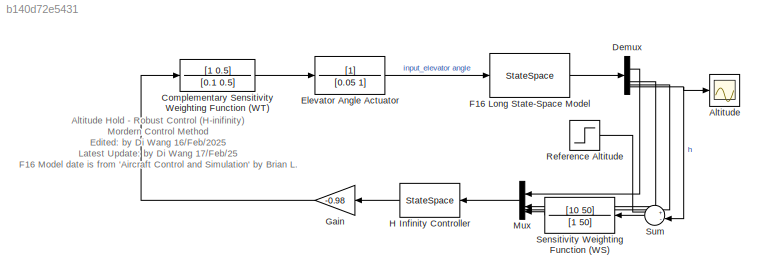
MODEL slx_b140d72e5431
KIND model
CONFIG AbsTol = auto
CONFIG EnableMultiTasking = off
CONFIG FixedStep = auto
CONFIG MaxStep = auto
CONFIG MinStep = auto
CONFIG RelTol = 1e-3
CONFIG SampleTimeConstraint = Unconstrained
CONFIG SolverName = VariableStepAuto
CONFIG StartTime = 0.0
CONFIG StopTime = 500
BLOCK [Scope] Altitude
  Floating = off
  NumInputPorts = 1
  ScopeSpecificationString = Simulink.scopes.TimeScopeBlockCfg('CurrentConfiguration', extmgr.ConfigurationSet(extmgr.Configuration('Core','General UI',true),extmgr.Configuration('Core','Source UI',true),extmgr.Configuration('Sources','WiredSimulink',true),extmgr.Configuration('Visuals','Time Domain',true,'SerializedDisplays',{struct('MinYLimReal','-173.58061','MaxYLimReal','1387.3348','YLabelReal','','MinYLimMag',' 0.00000',...<+1453ch>
BLOCK [TransferFcn] Complementary Sensitivity Weighting Function (WT)
  Denominator = [0.1 0.5]
  Numerator = [1 0.5]
BLOCK [Demux] Demux
BLOCK [TransferFcn] Elevator Angle Actuator
  Denominator = [0.05 1]
BLOCK [StateSpace] F16 Long State-Space Model
  A = sysLong.A
  B = sysLong.B
  C = sysLong.C
  D = sysLong.D
  InitialCondition = 0
BLOCK [Gain] Gain
  Gain = -0.98
  NameLocation = top
BLOCK [StateSpace] H Infinity Controller
  A = Kh.A
  B = Kh.B
  C = Kh.C
  D = Kh.D
  InitialCondition = 0
  NameLocation = top
BLOCK [Mux] Mux
  DisplayOption = bar
  NameLocation = top
BLOCK [Step] Reference Altitude
  After = 1000
  SampleTime = 0
BLOCK [TransferFcn] Sensitivity Weighting Function (WS)
  Denominator = [1 50]
  NameLocation = top
  Numerator = [10 50]
BLOCK [Sum] Sum
  Inputs = +-|
  NameLocation = top
ANNOTATION (root): Altitude Hold - Robust Control (H-inifinity) Mordern Control Method Edited: by Di Wang 16/Feb/2025 Latest Update: by Di Wang 17/Feb/25 F16 Model date is from 'Aircraft Control and Simulation' by Brian L.
LINE Complementary Sensitivity Weighting Function (WT):1 -> Elevator Angle Actuator:1
LINE Demux:1 -> Mux:1
LINE Demux:2 -> Mux:2
LINE Demux:3 -> Mux:3
NET Demux:4 -> Altitude:1, Sum:2
LINE Elevator Angle Actuator:1 -> F16 Long State-Space Model:1
LINE F16 Long State-Space Model:1 -> Demux:1
LINE Gain:1 -> Complementary Sensitivity Weighting Function (WT):1
LINE H Infinity Controller:1 -> Gain:1
LINE Mux:1 -> H Infinity Controller:1
LINE Reference Altitude:1 -> Sum:1
LINE Sensitivity Weighting Function (WS):1 -> Mux:4
LINE Sum:1 -> Sensitivity Weighting Function (WS):1
note: NET lines group one-source signal fan-out (src -> all destinations, sorted); 1:1 wires keep LINE
